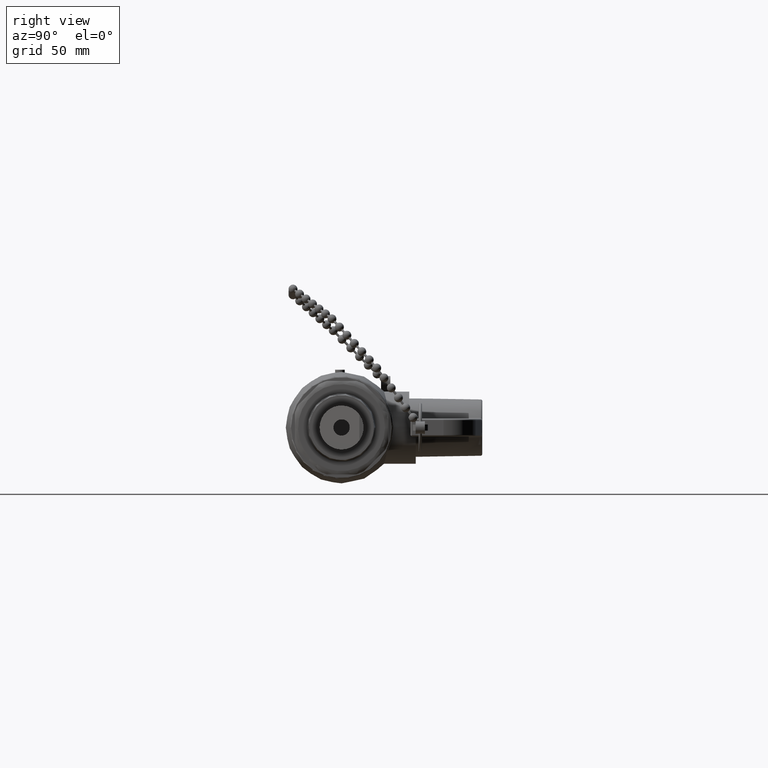
[diagram: clean part render]
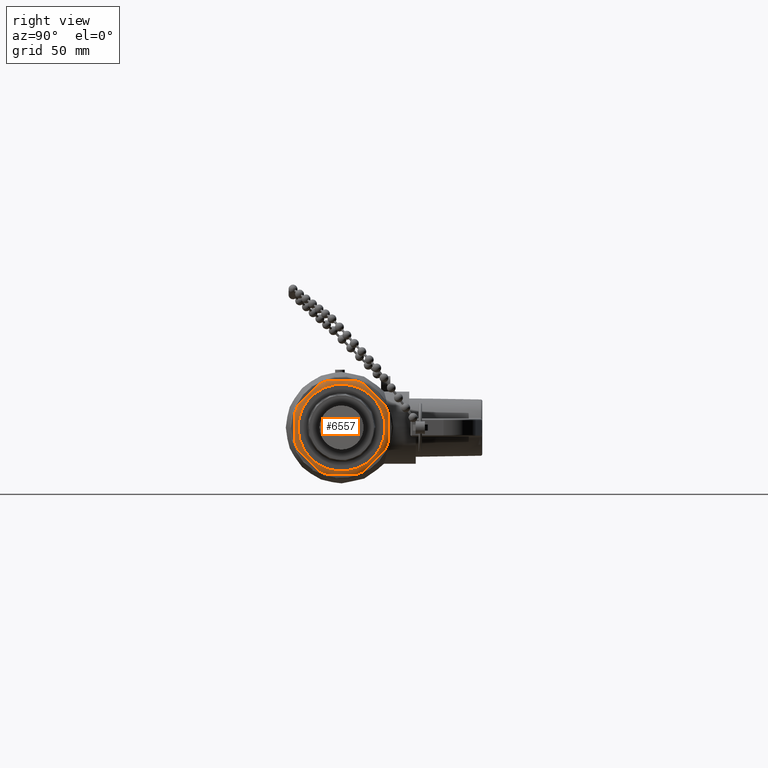
[diagram: same view with one face highlighted and labeled with its STEP entity id]
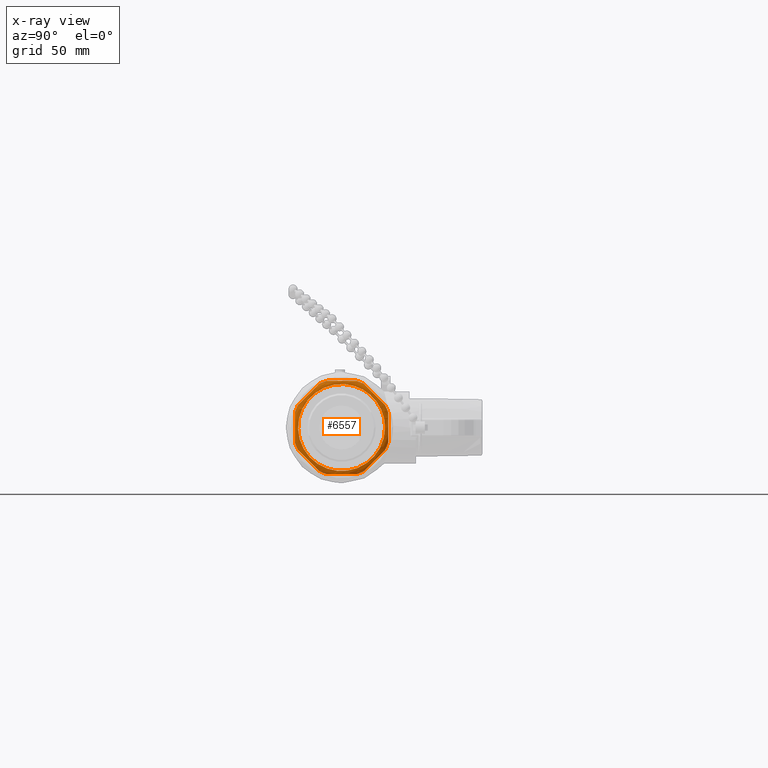
[diagram: x-ray of the same camera — body ghosted, the highlighted face saturated]
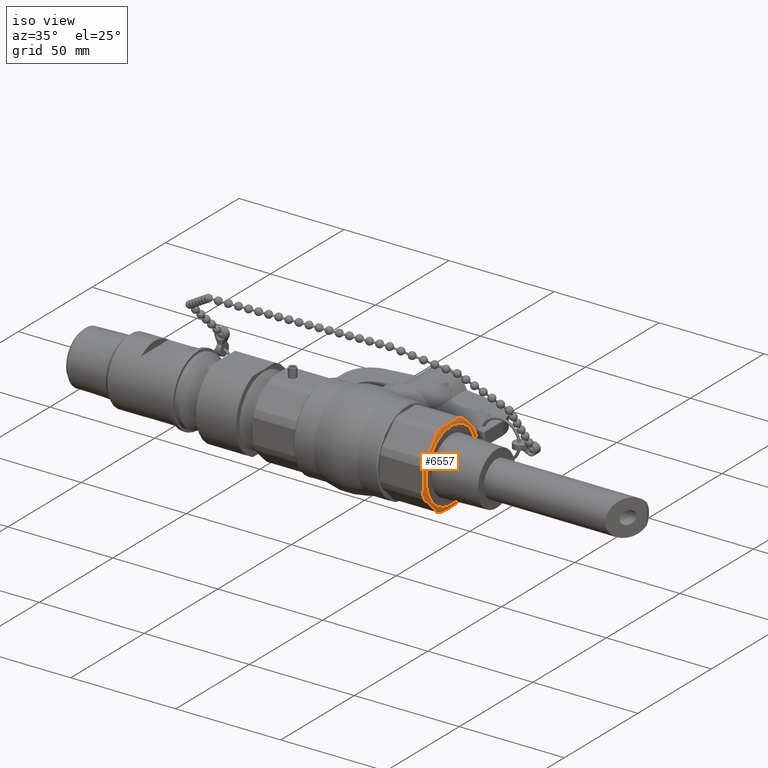
[diagram: same view with one face highlighted and labeled with its STEP entity id]
A machine part, right view. The second image highlights one B-rep face of the part: STEP entity #6557.
The next image is the same camera in x-ray: the body ghosted, the highlighted face saturated — about 0% of this face is hidden behind the body in this view.
A second angle (iso view) of the same face is appended — the face is thin or edge-on in the first view.
In plain terms, the highlighted toroidal blend (fillet) surface has major radius 16.9545 mm and minor (blend) radius 3.175 mm.
Its self-contained STEP definition (entity closure, byte-faithful):
#6324=CARTESIAN_POINT('',(1.618000000000000,0.667500000000000,1.981479E-016));
#6325=VERTEX_POINT('',#6324);
#6326=CARTESIAN_POINT('',(1.618000000000000,0.0,1.981479E-016));
#6327=DIRECTION('',(-1.0,0.0,0.0));
#6328=DIRECTION('',(0.0,-1.0,0.0));
#6329=AXIS2_PLACEMENT_3D('',#6326,#6327,#6328);
#6330=CIRCLE('',#6329,0.667500000000000);
#6331=EDGE_CURVE('',#6325,#6325,#6330,.T.);
#6347=CARTESIAN_POINT('',(1.493000000000000,0.0,1.828398E-016));
#6348=DIRECTION('',(-1.0,0.0,-1.224647E-016));
#6349=DIRECTION('',(0.0,0.0,1.0));
#6350=AXIS2_PLACEMENT_3D('',#6347,#6348,#6349);
#6351=TOROIDAL_SURFACE('',#6350,0.667500000000000,0.125000000000000);
#6352=ORIENTED_EDGE('',*,*,#6331,.T.);
#6353=EDGE_LOOP('',(#6352));
#6354=FACE_OUTER_BOUND('',#6353,.T.);
#6355=CARTESIAN_POINT('',(1.585112702707064,-0.666562415825159,0.348135815177537));
#6356=VERTEX_POINT('',#6355);
#6357=CARTESIAN_POINT('',(1.585112702707064,-0.717500000000000,0.225161608628114));
#6358=VERTEX_POINT('',#6357);
#6359=CARTESIAN_POINT('',(1.585112702707064,0.0,1.941203E-016));
#6360=DIRECTION('',(1.0,0.0,0.0));
#6361=DIRECTION('',(0.0,0.0,-1.0));
#6362=AXIS2_PLACEMENT_3D('',#6359,#6360,#6361);
#6363=CIRCLE('',#6362,0.752000000000000);
#6364=EDGE_CURVE('',#6356,#6358,#6363,.T.);
#6365=ORIENTED_EDGE('',*,*,#6364,.T.);
#6366=CARTESIAN_POINT('',(1.585112702707064,-0.717500000000000,-0.225161608628114));
#6367=VERTEX_POINT('',#6366);
#6368=CARTESIAN_POINT('',(1.585112702707064,-0.717500000000000,0.225161608628114));
#6369=CARTESIAN_POINT('',(1.593438193017208,-0.717500000000000,0.194850896924236));
#6370=CARTESIAN_POINT('',(1.598495457448399,-0.717500000000000,0.162194368817727));
#6371=CARTESIAN_POINT('',(1.606212016415179,-0.717500000000000,0.085193501644084));
#6372=CARTESIAN_POINT('',(1.607564392373896,-0.717500000000000,0.040601387131935));
#6373=CARTESIAN_POINT('',(1.607564392373896,-0.717500000000000,1.968699E-016));
#6374=CARTESIAN_POINT('',(1.607564392373896,-0.717500000000000,-0.040601387131935));
#6375=CARTESIAN_POINT('',(1.606212016415179,-0.717500000000000,-0.085193501644084));
#6376=CARTESIAN_POINT('',(1.598495457448399,-0.717500000000000,-0.162194368817727));
#6377=CARTESIAN_POINT('',(1.593438193017208,-0.717500000000000,-0.194850896924235));
#6378=CARTESIAN_POINT('',(1.585112702707064,-0.717500000000000,-0.225161608628114));
#6379=B_SPLINE_CURVE_WITH_KNOTS('',3,(#6368,#6369,#6370,#6371,#6372,#6373,#6374,#6375,#6376,#6377,#6378),.UNSPECIFIED.,.F.,.U.,(4,2,3,2,4),(-0.541598222803650,-0.309382569945343,0.0,0.309382569945343,0.541598222803650),.UNSPECIFIED.);
#6380=EDGE_CURVE('',#6358,#6367,#6379,.T.);
#6381=ORIENTED_EDGE('',*,*,#6380,.T.);
#6382=CARTESIAN_POINT('',(1.585112702707064,-0.666562415825159,-0.348135815177537));
#6383=VERTEX_POINT('',#6382);
#6384=CARTESIAN_POINT('',(1.585112702707064,0.0,1.941203E-016));
#6385=DIRECTION('',(1.0,0.0,0.0));
#6386=DIRECTION('',(0.0,0.0,-1.0));
#6387=AXIS2_PLACEMENT_3D('',#6384,#6385,#6386);
#6388=CIRCLE('',#6387,0.752000000000000);
#6389=EDGE_CURVE('',#6367,#6383,#6388,.T.);
#6390=ORIENTED_EDGE('',*,*,#6389,.T.);
#6391=CARTESIAN_POINT('',(1.585112702707064,-0.348135815177537,-0.666562415825159));
#6392=VERTEX_POINT('',#6391);
#6393=CARTESIAN_POINT('',(1.585112702707064,-0.666562415825159,-0.348135815177537));
#6394=CARTESIAN_POINT('',(1.593438193017208,-0.645129506036756,-0.369568724965940));
#6395=CARTESIAN_POINT('',(1.598495457448399,-0.622037853562635,-0.392660377440061));
#6396=CARTESIAN_POINT('',(1.606212016415179,-0.567590018226907,-0.447108212775789));
#6397=CARTESIAN_POINT('',(1.607564392373896,-0.536058631667919,-0.478639599334777));
#6398=CARTESIAN_POINT('',(1.607564392373896,-0.507349115501348,-0.507349115501348));
#6399=CARTESIAN_POINT('',(1.607564392373896,-0.478639599334777,-0.536058631667919));
#6400=CARTESIAN_POINT('',(1.606212016415179,-0.447108212775789,-0.567590018226907));
#6401=CARTESIAN_POINT('',(1.598495457448399,-0.392660377440061,-0.622037853562635));
#6402=CARTESIAN_POINT('',(1.593438193017208,-0.369568724965940,-0.645129506036756));
#6403=CARTESIAN_POINT('',(1.585112702707064,-0.348135815177537,-0.666562415825159));
#6404=B_SPLINE_CURVE_WITH_KNOTS('',3,(#6393,#6394,#6395,#6396,#6397,#6398,#6399,#6400,#6401,#6402,#6403),.UNSPECIFIED.,.F.,.U.,(4,2,3,2,4),(-0.541598222803650,-0.309382569945344,0.0,0.309382569945344,0.541598222803650),.UNSPECIFIED.);
#6405=EDGE_CURVE('',#6383,#6392,#6404,.T.);
#6406=ORIENTED_EDGE('',*,*,#6405,.T.);
#6407=CARTESIAN_POINT('',(1.585112702707064,-0.225161608628114,-0.717500000000000));
#6408=VERTEX_POINT('',#6407);
#6409=CARTESIAN_POINT('',(1.585112702707064,0.0,1.941203E-016));
#6410=DIRECTION('',(1.0,0.0,0.0));
#6411=DIRECTION('',(0.0,0.0,-1.0));
#6412=AXIS2_PLACEMENT_3D('',#6409,#6410,#6411);
#6413=CIRCLE('',#6412,0.752000000000000);
#6414=EDGE_CURVE('',#6392,#6408,#6413,.T.);
#6415=ORIENTED_EDGE('',*,*,#6414,.T.);
#6416=CARTESIAN_POINT('',(1.585112702707064,0.225161608628114,-0.717500000000000));
#6417=VERTEX_POINT('',#6416);
#6418=CARTESIAN_POINT('',(1.585112702707064,-0.225161608628114,-0.717500000000000));
#6419=CARTESIAN_POINT('',(1.593438193017208,-0.194850896924235,-0.717500000000000));
#6420=CARTESIAN_POINT('',(1.598495457448399,-0.162194368817727,-0.717500000000000));
#6421=CARTESIAN_POINT('',(1.606212016415179,-0.085193501644084,-0.717500000000000));
#6422=CARTESIAN_POINT('',(1.607564392373896,-0.040601387131935,-0.717500000000000));
#6423=CARTESIAN_POINT('',(1.607564392373896,0.0,-0.717500000000000));
#6424=CARTESIAN_POINT('',(1.607564392373896,0.040601387131935,-0.717500000000000));
#6425=CARTESIAN_POINT('',(1.606212016415179,0.085193501644084,-0.717500000000000));
#6426=CARTESIAN_POINT('',(1.598495457448399,0.162194368817727,-0.717500000000000));
#6427=CARTESIAN_POINT('',(1.593438193017208,0.194850896924236,-0.717500000000000));
#6428=CARTESIAN_POINT('',(1.585112702707064,0.225161608628114,-0.717500000000000));
#6429=B_SPLINE_CURVE_WITH_KNOTS('',3,(#6418,#6419,#6420,#6421,#6422,#6423,#6424,#6425,#6426,#6427,#6428),.UNSPECIFIED.,.F.,.U.,(4,2,3,2,4),(-0.541598222803650,-0.309382569945343,0.0,0.309382569945343,0.541598222803650),.UNSPECIFIED.);
#6430=EDGE_CURVE('',#6408,#6417,#6429,.T.);
#6431=ORIENTED_EDGE('',*,*,#6430,.T.);
#6432=CARTESIAN_POINT('',(1.585112702707064,0.348135815177537,-0.666562415825159));
#6433=VERTEX_POINT('',#6432);
#6434=CARTESIAN_POINT('',(1.585112702707064,0.0,1.941203E-016));
#6435=DIRECTION('',(1.0,0.0,0.0));
#6436=DIRECTION('',(0.0,0.0,-1.0));
#6437=AXIS2_PLACEMENT_3D('',#6434,#6435,#6436);
#6438=CIRCLE('',#6437,0.752000000000000);
#6439=EDGE_CURVE('',#6417,#6433,#6438,.T.);
#6440=ORIENTED_EDGE('',*,*,#6439,.T.);
#6441=CARTESIAN_POINT('',(1.585112702707064,0.666562415825159,-0.348135815177537));
#6442=VERTEX_POINT('',#6441);
#6443=CARTESIAN_POINT('',(1.585112702707064,0.348135815177537,-0.666562415825158));
#6444=CARTESIAN_POINT('',(1.593438193017208,0.369568724965940,-0.645129506036756));
#6445=CARTESIAN_POINT('',(1.598495457448399,0.392660377440061,-0.622037853562635));
#6446=CARTESIAN_POINT('',(1.606212016415179,0.447108212775789,-0.567590018226907));
#6447=CARTESIAN_POINT('',(1.607564392373896,0.478639599334777,-0.536058631667919));
#6448=CARTESIAN_POINT('',(1.607564392373896,0.507349115501348,-0.507349115501348));
#6449=CARTESIAN_POINT('',(1.607564392373896,0.536058631667919,-0.478639599334777));
#6450=CARTESIAN_POINT('',(1.606212016415179,0.567590018226907,-0.447108212775789));
#6451=CARTESIAN_POINT('',(1.598495457448399,0.622037853562635,-0.392660377440061));
#6452=CARTESIAN_POINT('',(1.593438193017208,0.645129506036756,-0.369568724965940));
#6453=CARTESIAN_POINT('',(1.585112702707064,0.666562415825159,-0.348135815177537));
#6454=B_SPLINE_CURVE_WITH_KNOTS('',3,(#6443,#6444,#6445,#6446,#6447,#6448,#6449,#6450,#6451,#6452,#6453),.UNSPECIFIED.,.F.,.U.,(4,2,3,2,4),(-0.541598222803650,-0.309382569945344,0.0,0.309382569945344,0.541598222803650),.UNSPECIFIED.);
#6455=EDGE_CURVE('',#6433,#6442,#6454,.T.);
#6456=ORIENTED_EDGE('',*,*,#6455,.T.);
#6457=CARTESIAN_POINT('',(1.585112702707064,0.717500000000000,-0.225161608628114));
#6458=VERTEX_POINT('',#6457);
#6459=CARTESIAN_POINT('',(1.585112702707064,0.0,1.941203E-016));
#6460=DIRECTION('',(1.0,0.0,0.0));
#6461=DIRECTION('',(0.0,0.0,-1.0));
#6462=AXIS2_PLACEMENT_3D('',#6459,#6460,#6461);
#6463=CIRCLE('',#6462,0.752000000000000);
#6464=EDGE_CURVE('',#6442,#6458,#6463,.T.);
#6465=ORIENTED_EDGE('',*,*,#6464,.T.);
#6466=CARTESIAN_POINT('',(1.585112702707064,0.717500000000000,0.225161608628114));
#6467=VERTEX_POINT('',#6466);
#6468=CARTESIAN_POINT('',(1.585112702707064,0.717500000000000,-0.225161608628114));
#6469=CARTESIAN_POINT('',(1.593438193017208,0.717500000000000,-0.194850896924235));
#6470=CARTESIAN_POINT('',(1.598495457448399,0.717500000000000,-0.162194368817727));
#6471=CARTESIAN_POINT('',(1.606212016415179,0.717500000000000,-0.085193501644084));
#6472=CARTESIAN_POINT('',(1.607564392373896,0.717500000000000,-0.040601387131935));
#6473=CARTESIAN_POINT('',(1.607564392373896,0.717500000000000,1.968699E-016));
#6474=CARTESIAN_POINT('',(1.607564392373896,0.717500000000000,0.040601387131935));
#6475=CARTESIAN_POINT('',(1.606212016415179,0.717500000000000,0.085193501644084));
#6476=CARTESIAN_POINT('',(1.598495457448399,0.717500000000000,0.162194368817727));
#6477=CARTESIAN_POINT('',(1.593438193017208,0.717500000000000,0.194850896924236));
#6478=CARTESIAN_POINT('',(1.585112702707064,0.717500000000000,0.225161608628114));
#6479=B_SPLINE_CURVE_WITH_KNOTS('',3,(#6468,#6469,#6470,#6471,#6472,#6473,#6474,#6475,#6476,#6477,#6478),.UNSPECIFIED.,.F.,.U.,(4,2,3,2,4),(-0.541598222803650,-0.309382569945343,0.0,0.309382569945343,0.541598222803650),.UNSPECIFIED.);
#6480=EDGE_CURVE('',#6458,#6467,#6479,.T.);
#6481=ORIENTED_EDGE('',*,*,#6480,.T.);
#6482=CARTESIAN_POINT('',(1.585112702707064,0.666562415825159,0.348135815177537));
#6483=VERTEX_POINT('',#6482);
#6484=CARTESIAN_POINT('',(1.585112702707064,0.0,1.941203E-016));
#6485=DIRECTION('',(1.0,0.0,0.0));
#6486=DIRECTION('',(0.0,0.0,-1.0));
#6487=AXIS2_PLACEMENT_3D('',#6484,#6485,#6486);
#6488=CIRCLE('',#6487,0.752000000000000);
#6489=EDGE_CURVE('',#6467,#6483,#6488,.T.);
#6490=ORIENTED_EDGE('',*,*,#6489,.T.);
#6491=CARTESIAN_POINT('',(1.585112702707064,0.348135815177537,0.666562415825159));
#6492=VERTEX_POINT('',#6491);
#6493=CARTESIAN_POINT('',(1.585112702707064,0.666562415825159,0.348135815177537));
#6494=CARTESIAN_POINT('',(1.593438193017208,0.645129506036756,0.369568724965940));
#6495=CARTESIAN_POINT('',(1.598495457448399,0.622037853562635,0.392660377440061));
#6496=CARTESIAN_POINT('',(1.606212016415179,0.567590018226907,0.447108212775789));
#6497=CARTESIAN_POINT('',(1.607564392373896,0.536058631667919,0.478639599334777));
#6498=CARTESIAN_POINT('',(1.607564392373896,0.507349115501348,0.507349115501348));
#6499=CARTESIAN_POINT('',(1.607564392373896,0.478639599334777,0.536058631667920));
#6500=CARTESIAN_POINT('',(1.606212016415179,0.447108212775789,0.567590018226907));
#6501=CARTESIAN_POINT('',(1.598495457448399,0.392660377440061,0.622037853562635));
#6502=CARTESIAN_POINT('',(1.593438193017208,0.369568724965940,0.645129506036756));
#6503=CARTESIAN_POINT('',(1.585112702707064,0.348135815177537,0.666562415825159));
#6504=B_SPLINE_CURVE_WITH_KNOTS('',3,(#6493,#6494,#6495,#6496,#6497,#6498,#6499,#6500,#6501,#6502,#6503),.UNSPECIFIED.,.F.,.U.,(4,2,3,2,4),(-0.541598222803650,-0.309382569945344,0.0,0.309382569945344,0.541598222803650),.UNSPECIFIED.);
#6505=EDGE_CURVE('',#6483,#6492,#6504,.T.);
#6506=ORIENTED_EDGE('',*,*,#6505,.T.);
#6507=CARTESIAN_POINT('',(1.585112702707064,0.225161608628114,0.717500000000000));
#6508=VERTEX_POINT('',#6507);
#6509=CARTESIAN_POINT('',(1.585112702707064,0.0,1.941203E-016));
#6510=DIRECTION('',(1.0,0.0,0.0));
#6511=DIRECTION('',(0.0,0.0,-1.0));
#6512=AXIS2_PLACEMENT_3D('',#6509,#6510,#6511);
#6513=CIRCLE('',#6512,0.752000000000000);
#6514=EDGE_CURVE('',#6492,#6508,#6513,.T.);
#6515=ORIENTED_EDGE('',*,*,#6514,.T.);
#6516=CARTESIAN_POINT('',(1.585112702707064,-0.225161608628114,0.717500000000000));
#6517=VERTEX_POINT('',#6516);
#6518=CARTESIAN_POINT('',(1.585112702707064,0.225161608628114,0.717500000000000));
#6519=CARTESIAN_POINT('',(1.593438193017208,0.194850896924235,0.717500000000000));
#6520=CARTESIAN_POINT('',(1.598495457448399,0.162194368817727,0.717500000000000));
#6521=CARTESIAN_POINT('',(1.606212016415179,0.085193501644084,0.717500000000000));
#6522=CARTESIAN_POINT('',(1.607564392373896,0.040601387131935,0.717500000000000));
#6523=CARTESIAN_POINT('',(1.607564392373896,0.0,0.717500000000000));
#6524=CARTESIAN_POINT('',(1.607564392373896,-0.040601387131935,0.717500000000000));
#6525=CARTESIAN_POINT('',(1.606212016415179,-0.085193501644084,0.717500000000000));
#6526=CARTESIAN_POINT('',(1.598495457448399,-0.162194368817727,0.717500000000000));
#6527=CARTESIAN_POINT('',(1.593438193017208,-0.194850896924236,0.717500000000000));
#6528=CARTESIAN_POINT('',(1.585112702707064,-0.225161608628114,0.717500000000000));
#6529=B_SPLINE_CURVE_WITH_KNOTS('',3,(#6518,#6519,#6520,#6521,#6522,#6523,#6524,#6525,#6526,#6527,#6528),.UNSPECIFIED.,.F.,.U.,(4,2,3,2,4),(-0.541598222803650,-0.309382569945343,0.0,0.309382569945343,0.541598222803650),.UNSPECIFIED.);
#6530=EDGE_CURVE('',#6508,#6517,#6529,.T.);
#6531=ORIENTED_EDGE('',*,*,#6530,.T.);
#6532=CARTESIAN_POINT('',(1.585112702707064,-0.348135815177537,0.666562415825159));
#6533=VERTEX_POINT('',#6532);
#6534=CARTESIAN_POINT('',(1.585112702707064,0.0,1.941203E-016));
#6535=DIRECTION('',(1.0,0.0,0.0));
#6536=DIRECTION('',(0.0,0.0,-1.0));
#6537=AXIS2_PLACEMENT_3D('',#6534,#6535,#6536);
#6538=CIRCLE('',#6537,0.752000000000000);
#6539=EDGE_CURVE('',#6517,#6533,#6538,.T.);
#6540=ORIENTED_EDGE('',*,*,#6539,.T.);
#6541=CARTESIAN_POINT('',(1.585112702707064,-0.348135815177537,0.666562415825159));
#6542=CARTESIAN_POINT('',(1.593438193017208,-0.369568724965940,0.645129506036756));
#6543=CARTESIAN_POINT('',(1.598495457448399,-0.392660377440061,0.622037853562635));
#6544=CARTESIAN_POINT('',(1.606212016415179,-0.447108212775789,0.567590018226907));
#6545=CARTESIAN_POINT('',(1.607564392373896,-0.478639599334777,0.536058631667920));
#6546=CARTESIAN_POINT('',(1.607564392373896,-0.507349115501348,0.507349115501348));
#6547=CARTESIAN_POINT('',(1.607564392373896,-0.536058631667919,0.478639599334777));
#6548=CARTESIAN_POINT('',(1.606212016415179,-0.567590018226907,0.447108212775789));
#6549=CARTESIAN_POINT('',(1.598495457448399,-0.622037853562635,0.392660377440061));
#6550=CARTESIAN_POINT('',(1.593438193017208,-0.645129506036756,0.369568724965940));
#6551=CARTESIAN_POINT('',(1.585112702707064,-0.666562415825159,0.348135815177537));
#6552=B_SPLINE_CURVE_WITH_KNOTS('',3,(#6541,#6542,#6543,#6544,#6545,#6546,#6547,#6548,#6549,#6550,#6551),.UNSPECIFIED.,.F.,.U.,(4,2,3,2,4),(-0.541598222803650,-0.309382569945344,0.0,0.309382569945344,0.541598222803650),.UNSPECIFIED.);
#6553=EDGE_CURVE('',#6533,#6356,#6552,.T.);
#6554=ORIENTED_EDGE('',*,*,#6553,.T.);
#6555=EDGE_LOOP('',(#6365,#6381,#6390,#6406,#6415,#6431,#6440,#6456,#6465,#6481,#6490,#6506,#6515,#6531,#6540,#6554));
#6556=FACE_BOUND('',#6555,.T.);
#6557=ADVANCED_FACE('',(#6354,#6556),#6351,.T.);